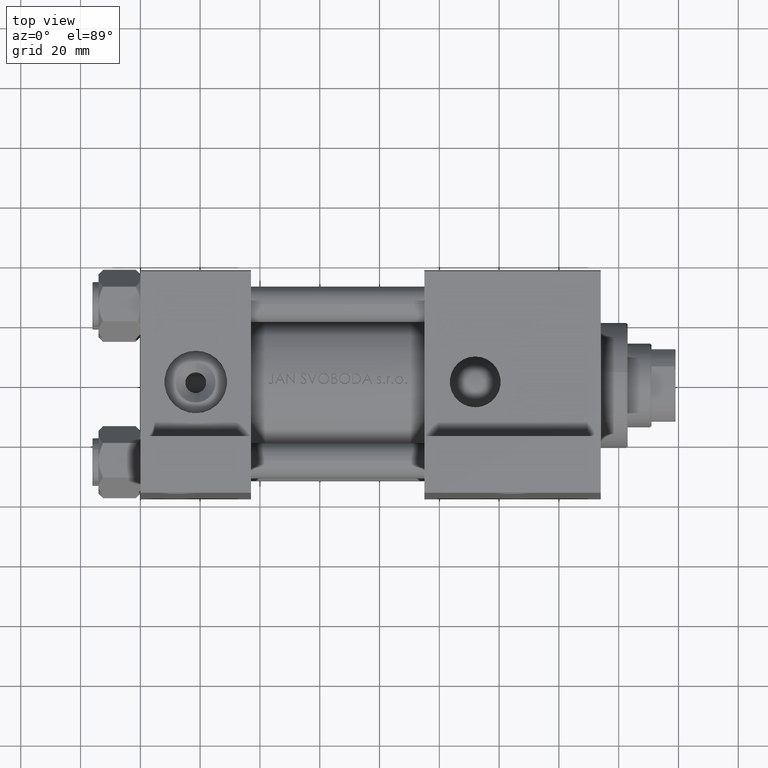
[diagram: clean part render]
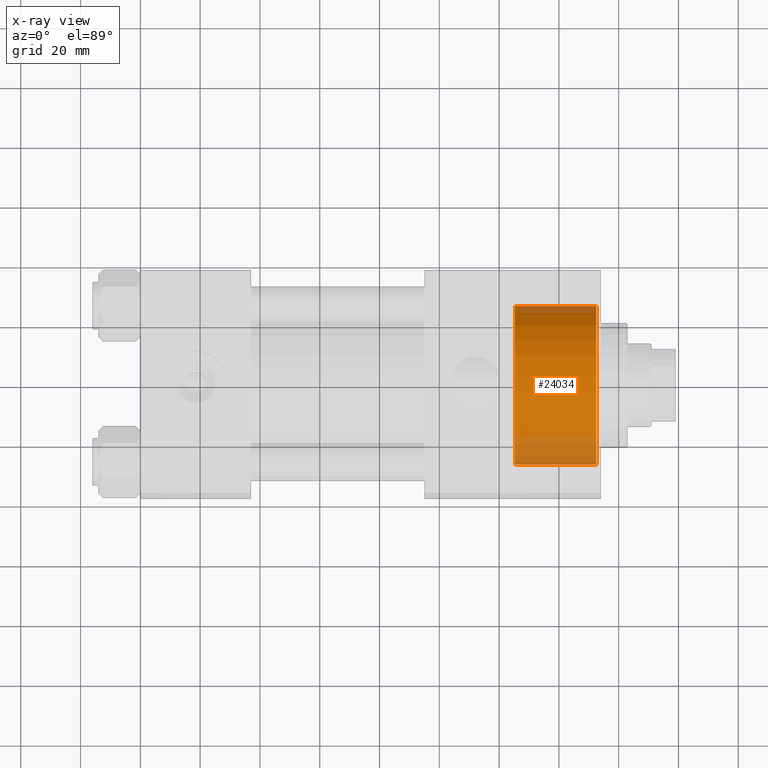
[diagram: x-ray — body ghosted, one internal face saturated and labeled with its STEP entity id]
A machine part, top view, then the same camera in x-ray: the body is ghosted and one INTERNAL B-rep face — a face not visible from any outside direction — is saturated and labeled: STEP entity #24034.
In plain terms, the highlighted cylindrical surface (partial cylindrical patch) has radius 26.5 mm, axis along (1, 0, 0).
Its self-contained STEP definition (entity closure, byte-faithful):
#2929 = CARTESIAN_POINT ( 'NONE',  ( 152.5000000000000568, 3.245314017740486554E-15, 26.00000000000000355 ) ) ;
#3754 = CARTESIAN_POINT ( 'NONE',  ( 152.5000000000000568, 0.000000000000000000, -27.00000000000000355 ) ) ;
#5683 = VERTEX_POINT ( 'NONE', #3754 ) ;
#7419 = AXIS2_PLACEMENT_3D ( 'NONE', #36457, #40305, #32855 ) ;
#7639 = ORIENTED_EDGE ( 'NONE', *, *, #23416, .F. ) ;
#7911 = EDGE_LOOP ( 'NONE', ( #32248, #20054, #22656, #7639 ) ) ;
#8170 = CIRCLE ( 'NONE', #7419, 26.50000000000000355 ) ;
#9268 = VERTEX_POINT ( 'NONE', #44671 ) ;
#9364 = CARTESIAN_POINT ( 'NONE',  ( 125.2999999999999972, 0.000000000000000000, -27.00000000000000355 ) ) ;
#9575 = DIRECTION ( 'NONE',  ( 1.000000000000000000, -0.000000000000000000, -0.000000000000000000 ) ) ;
#10353 = VECTOR ( 'NONE', #16844, 1000.000000000000000 ) ;
#10597 = DIRECTION ( 'NONE',  ( 0.000000000000000000, 0.000000000000000000, 1.000000000000000000 ) ) ;
#10659 = CARTESIAN_POINT ( 'NONE',  ( 125.2999999999999972, 0.000000000000000000, -0.5000000000000004441 ) ) ;
#12577 = EDGE_CURVE ( 'NONE', #9268, #44503, #31471, .T. ) ;
#16629 = CIRCLE ( 'NONE', #39688, 26.50000000000000355 ) ;
#16844 = DIRECTION ( 'NONE',  ( 1.000000000000000000, -0.000000000000000000, -0.000000000000000000 ) ) ;
#20054 = ORIENTED_EDGE ( 'NONE', *, *, #12577, .T. ) ;
#21378 = CARTESIAN_POINT ( 'NONE',  ( 125.2999999999999972, 3.245314017740486554E-15, 26.00000000000000355 ) ) ;
#22656 = ORIENTED_EDGE ( 'NONE', *, *, #30738, .T. ) ;
#23416 = EDGE_CURVE ( 'NONE', #35173, #5683, #32252, .T. ) ;
#24034 = ADVANCED_FACE ( 'NONE', ( #39777 ), #47456, .F. ) ;
#25854 = EDGE_CURVE ( 'NONE', #9268, #35173, #8170, .T. ) ;
#26556 = AXIS2_PLACEMENT_3D ( 'NONE', #10659, #47217, #39531 ) ;
#29851 = CARTESIAN_POINT ( 'NONE',  ( 152.5000000000000568, 0.000000000000000000, -0.5000000000000004441 ) ) ;
#30738 = EDGE_CURVE ( 'NONE', #44503, #5683, #16629, .T. ) ;
#31471 = LINE ( 'NONE', #21378, #43965 ) ;
#32248 = ORIENTED_EDGE ( 'NONE', *, *, #25854, .F. ) ;
#32252 = LINE ( 'NONE', #38737, #10353 ) ;
#32855 = DIRECTION ( 'NONE',  ( 0.000000000000000000, 0.000000000000000000, -1.000000000000000000 ) ) ;
#35173 = VERTEX_POINT ( 'NONE', #9364 ) ;
#36457 = CARTESIAN_POINT ( 'NONE',  ( 125.2999999999999972, 0.000000000000000000, -0.5000000000000004441 ) ) ;
#38737 = CARTESIAN_POINT ( 'NONE',  ( 125.2999999999999972, 0.000000000000000000, -27.00000000000000355 ) ) ;
#39531 = DIRECTION ( 'NONE',  ( 0.000000000000000000, 0.000000000000000000, -1.000000000000000000 ) ) ;
#39688 = AXIS2_PLACEMENT_3D ( 'NONE', #29851, #43572, #10597 ) ;
#39777 = FACE_OUTER_BOUND ( 'NONE', #7911, .T. ) ;
#40305 = DIRECTION ( 'NONE',  ( 1.000000000000000000, 0.000000000000000000, 0.000000000000000000 ) ) ;
#43572 = DIRECTION ( 'NONE',  ( 1.000000000000000000, 0.000000000000000000, 0.000000000000000000 ) ) ;
#43965 = VECTOR ( 'NONE', #9575, 1000.000000000000000 ) ;
#44503 = VERTEX_POINT ( 'NONE', #2929 ) ;
#44671 = CARTESIAN_POINT ( 'NONE',  ( 125.2999999999999972, 3.245314017740486554E-15, 26.00000000000000355 ) ) ;
#47217 = DIRECTION ( 'NONE',  ( 1.000000000000000000, -0.000000000000000000, -0.000000000000000000 ) ) ;
#47456 = CYLINDRICAL_SURFACE ( 'NONE', #26556, 26.50000000000000355 ) ;